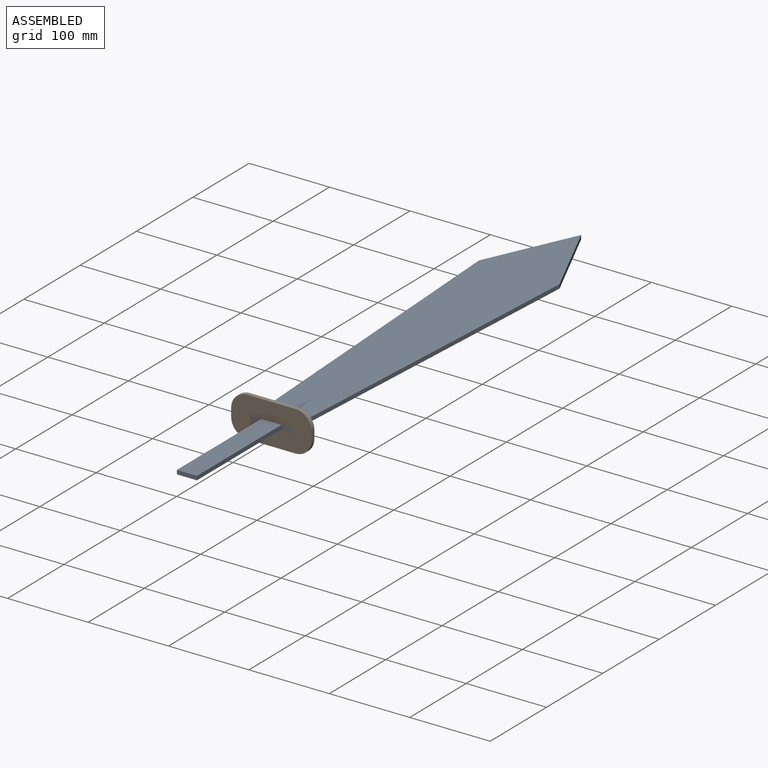
[diagram: assembled view]
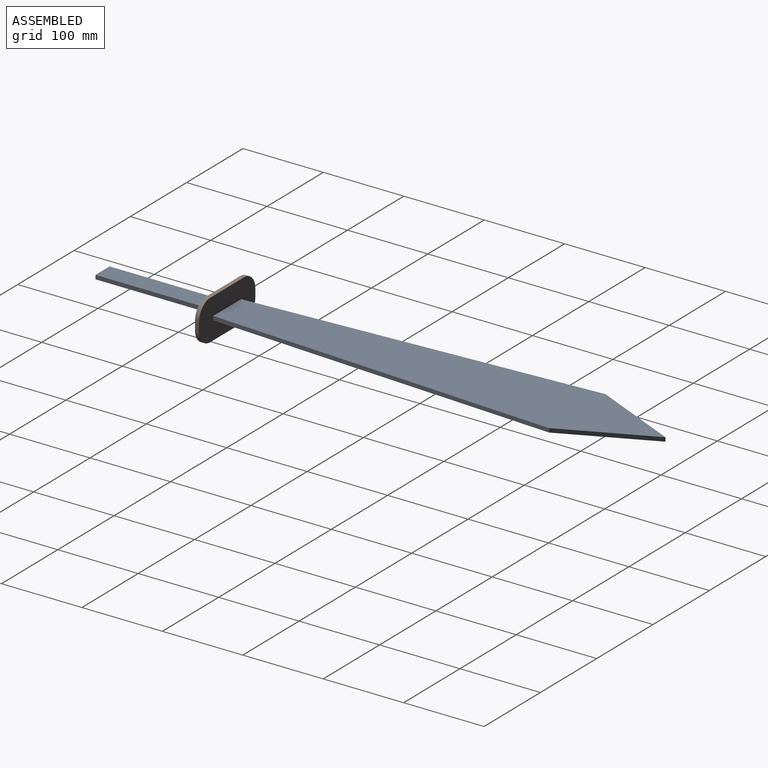
[diagram: assembled view, second angle]
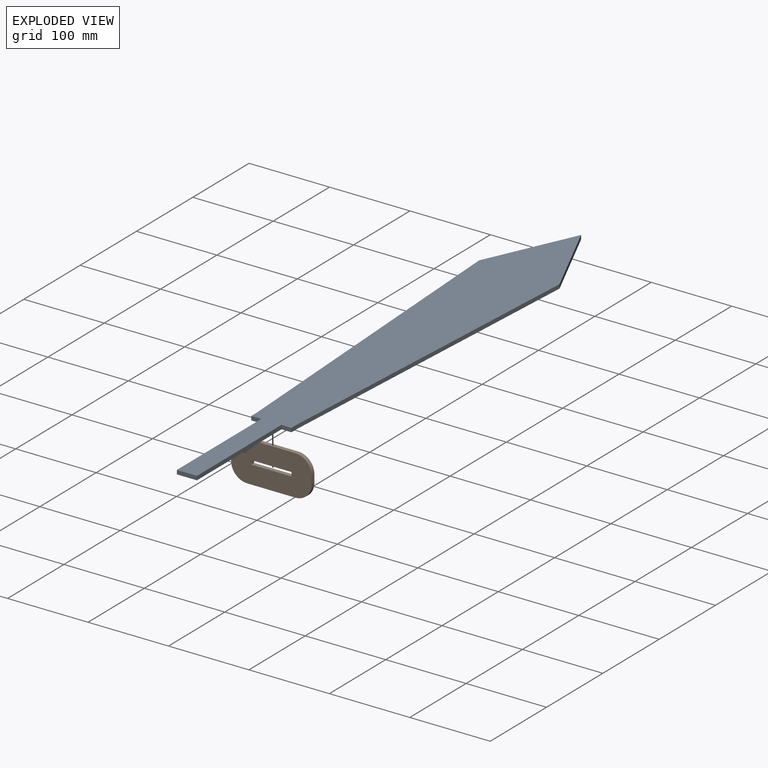
[diagram: exploded view]
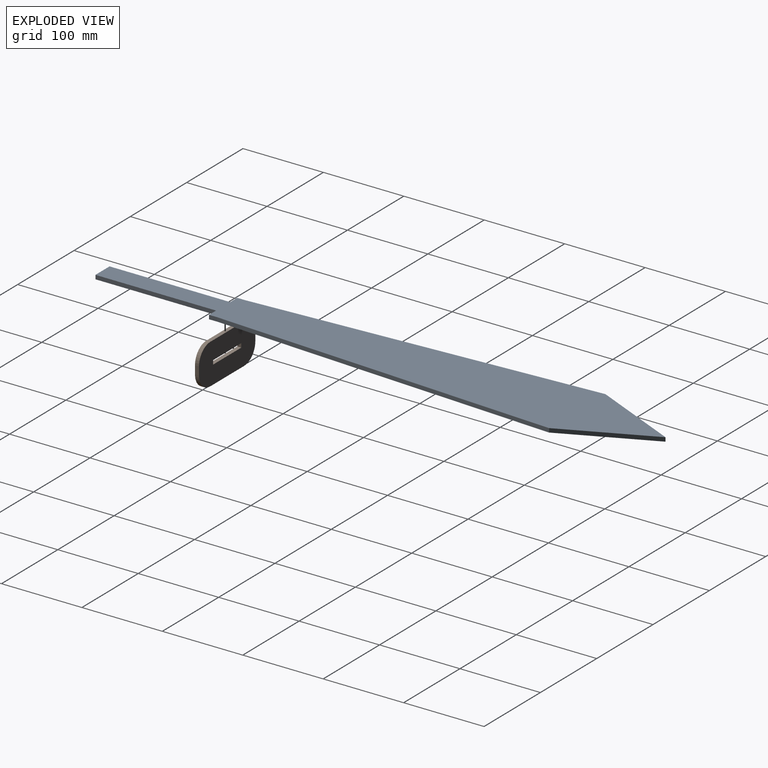
[diagram: exploded view, second angle]
ASSEMBLY  parts=2 mates=3
PART A: 13 faces, bbox 100x700x5 mm
  f0: plane 10x5mm, normal (-1,0,0), area 50mm2, adj f1,f10,f11,f12
  f1: plane 12.5x5mm, normal (0,-1,0), area 62.5mm2, adj f0,f2,f11,f12
  f2: plane 150x5mm, normal (-1,0,0), area 750mm2, adj f1,f3,f11,f12
  f3: plane 25x5mm, normal (0,-1,0), area 125mm2, adj f2,f4,f11,f12
  f4: plane 150x5mm, normal (1,0,0), area 750mm2, adj f3,f5,f11,f12
  f5: plane 12.5x5mm, normal (0,-1,0), area 62.5mm2, adj f4,f6,f11,f12
  f6: plane 10x5mm, normal (1,0,0), area 50mm2, adj f5,f7,f11,f12
  f7: plane 430.25x25mm, normal (1,-0.06,0), area 2154.9mm2, adj f6,f8,f11,f12
  f8: plane 109.75x50mm, normal (0.91,0.41,0), area 603mm2, adj f7,f9,f11,f12
  f9: plane 109.75x50mm, normal (-0.91,0.41,0), area 603mm2, adj f8,f10,f11,f12
  f10: plane 430.25x25mm, normal (-1,-0.06,0), area 2154.9mm2, adj f0,f9,f11,f12
  f11: plane 700x100mm, normal (0,0,1), area 42006.2mm2, adj f0,f1,f2,f3,f4,f5,f6,f7
  f12: plane 700x100mm, normal (0,0,-1), area 42006.2mm2, adj f0,f1,f2,f3,f4,f5,f6,f7
PART B: 14 faces, bbox 100x5x50 mm
  f0: plane 60x5mm, normal (0,0,1), area 300mm2, adj f1,f11,f12,f13
  f1: cylinder r=20mm len=20mm, axis (0,1,0), area 157.1mm2, adj f0,f2,f12,f13
  f2: plane 10x5mm, normal (-1,0,0), area 50mm2, adj f1,f3,f12,f13
  f3: cylinder r=20mm len=20mm, axis (0,1,0), area 157.1mm2, adj f2,f4,f12,f13
  f4: plane 60x5mm, normal (0,0,-1), area 300mm2, adj f3,f5,f12,f13
  f5: cylinder r=20mm len=20mm, axis (0,1,0), area 157.1mm2, adj f4,f6,f12,f13
  f6: plane 10x5mm, normal (1,0,0), area 50mm2, adj f5,f11,f12,f13
  f7: plane 5x5mm, normal (-1,0,0), area 25mm2, adj f8,f10,f12,f13
  f8: plane 50x5mm, normal (0,0,1), area 250mm2, adj f7,f9,f12,f13
  f9: plane 5x5mm, normal (1,0,0), area 25mm2, adj f8,f10,f12,f13
  f10: plane 50x5mm, normal (0,0,-1), area 250mm2, adj f7,f9,f12,f13
  f11: cylinder r=20mm len=20mm, axis (0,1,0), area 157.1mm2, adj f0,f6,f12,f13
  f12: plane 100x50mm, normal (0,-1,0), area 4406.6mm2, adj f0,f1,f2,f3,f4,f5,f6,f7
  f13: plane 100x50mm, normal (0,1,0), area 4406.6mm2, adj f0,f1,f2,f3,f4,f5,f6,f7
PLACE A t=(0,244.98,20.54)mm
PLACE B rot(axis=(0,1,0),180deg) t=(0,-69.46,23.04)mm
MATE planar B.f10 <-> A.f12  axis (0,0,1) through (25,-74.46,20.54)mm
MATE planar B.f3 <-> A.f1  axis (0,-1,0) through (30,-74.46,28.04)mm
MATE planar B.f7 <-> A.f0  axis (1,0,0) through (-25,-71.96,23.04)mm
